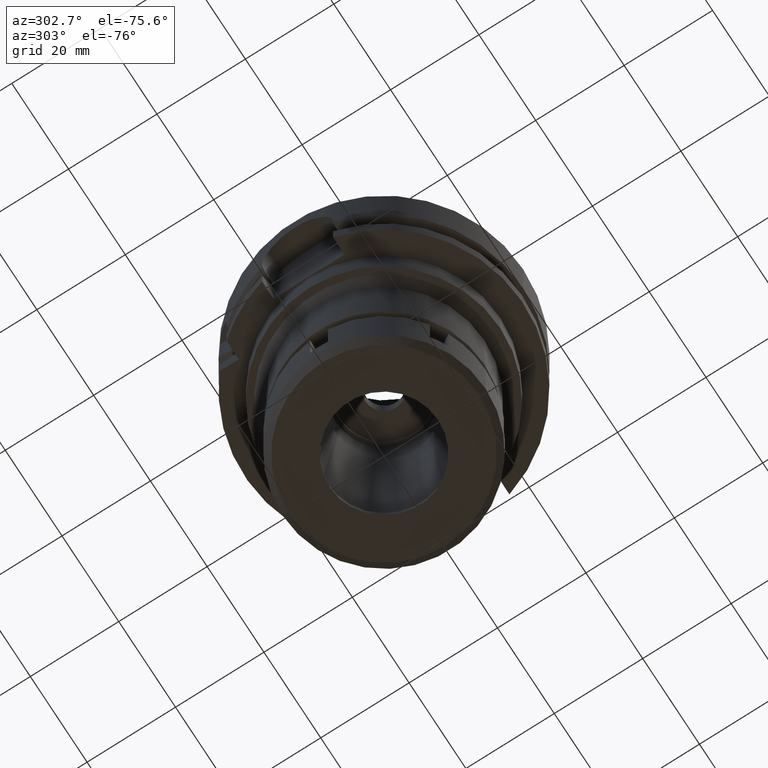
[diagram: clean part render]
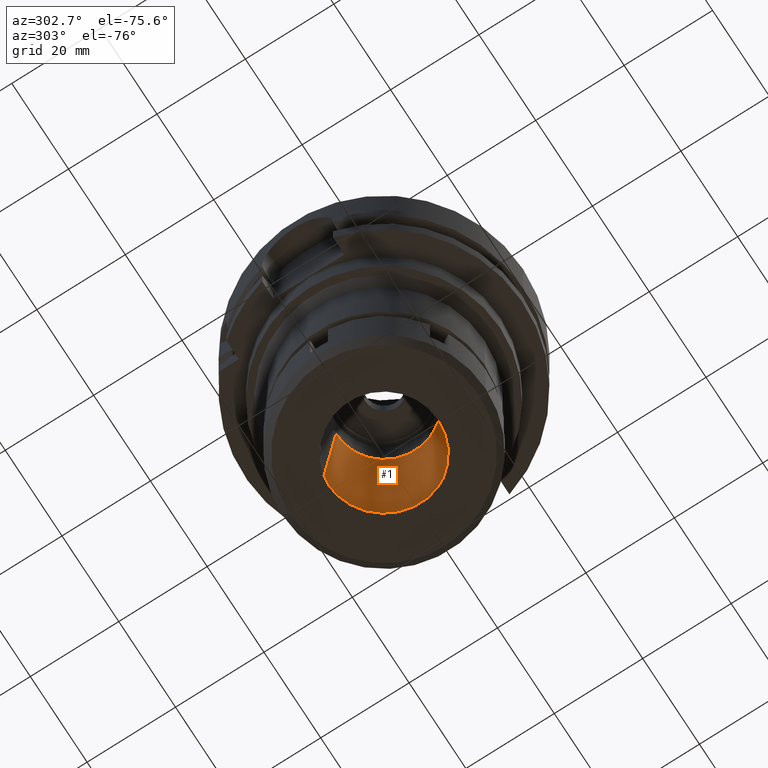
[diagram: same view with one face highlighted and labeled with its STEP entity id]
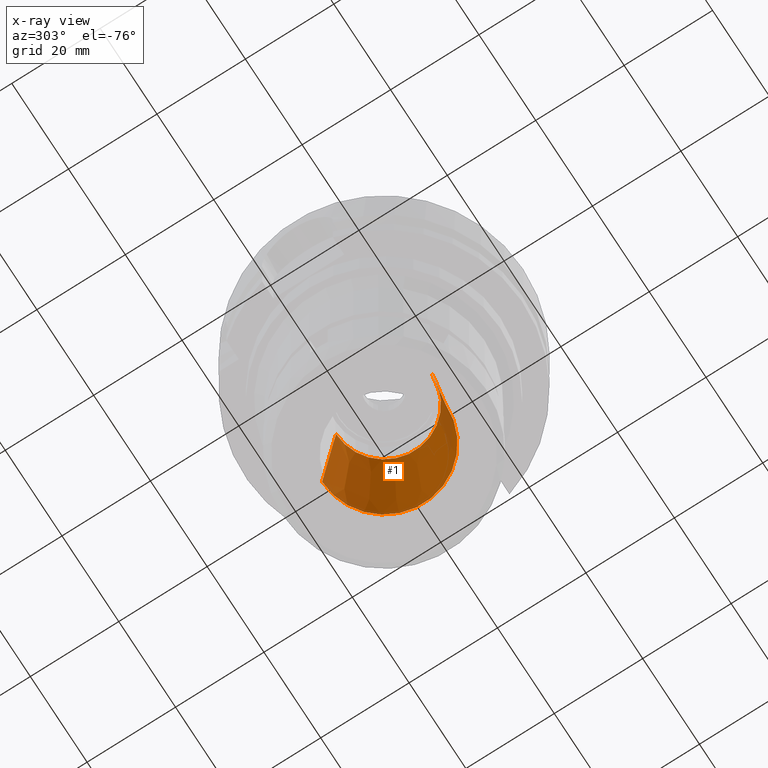
[diagram: x-ray of the same camera — body ghosted, the highlighted face saturated]
A machine part, auxiliary view. The second image highlights one B-rep face of the part: STEP entity #1.
The next image is the same camera in x-ray: the body ghosted, the highlighted face saturated — about 5% of this face is hidden behind the body in this view.
In plain terms, the highlighted conical surface has half-angle 6 deg.
Its self-contained STEP definition (entity closure, byte-faithful):
#1 = ADVANCED_FACE ( 'NONE', ( #909 ), #3991, .F. ) ;
#58 = AXIS2_PLACEMENT_3D ( 'NONE', #1584, #1493, #5385 ) ;
#283 = CARTESIAN_POINT ( 'NONE',  ( 0.0000000000000000000, 10.84687294202000096, -37.00000000000000000 ) ) ;
#517 = CARTESIAN_POINT ( 'NONE',  ( 0.0000000000000000000, 14.00000000000000000, -67.00000000000000000 ) ) ;
#808 = ORIENTED_EDGE ( 'NONE', *, *, #5412, .F. ) ;
#896 = VERTEX_POINT ( 'NONE', #4937 ) ;
#909 = FACE_OUTER_BOUND ( 'NONE', #5416, .T. ) ;
#1324 = ORIENTED_EDGE ( 'NONE', *, *, #3180, .T. ) ;
#1493 = DIRECTION ( 'NONE',  ( 0.0000000000000000000, 0.0000000000000000000, 1.000000000000000000 ) ) ;
#1584 = CARTESIAN_POINT ( 'NONE',  ( 0.0000000000000000000, 0.0000000000000000000, -37.00000000000000000 ) ) ;
#1620 = CARTESIAN_POINT ( 'NONE',  ( 0.0000000000000000000, -14.00000000000000000, -67.00000000000000000 ) ) ;
#1715 = LINE ( 'NONE', #1620, #4380 ) ;
#1796 = VERTEX_POINT ( 'NONE', #2607 ) ;
#1977 = VECTOR ( 'NONE', #3745, 1000.000000000000227 ) ;
#2577 = EDGE_CURVE ( 'NONE', #896, #3536, #1715, .T. ) ;
#2607 = CARTESIAN_POINT ( 'NONE',  ( 0.0000000000000000000, 14.00000000000000000, -67.00000000000000000 ) ) ;
#3179 = ORIENTED_EDGE ( 'NONE', *, *, #4331, .T. ) ;
#3180 = EDGE_CURVE ( 'NONE', #1796, #896, #6003, .T. ) ;
#3280 = AXIS2_PLACEMENT_3D ( 'NONE', #4152, #4618, #5062 ) ;
#3536 = VERTEX_POINT ( 'NONE', #4803 ) ;
#3650 = DIRECTION ( 'NONE',  ( 0.0000000000000000000, 0.1045284632676965891, 0.9945218953682687379 ) ) ;
#3745 = DIRECTION ( 'NONE',  ( 0.0000000000000000000, -0.1045284632676965891, 0.9945218953682687379 ) ) ;
#3991 = CONICAL_SURFACE ( 'NONE', #5007, 12.42343647100999959, 0.1047197551196402399 ) ;
#4152 = CARTESIAN_POINT ( 'NONE',  ( 0.0000000000000000000, 0.0000000000000000000, -67.00000000000000000 ) ) ;
#4331 = EDGE_CURVE ( 'NONE', #3536, #6096, #5112, .T. ) ;
#4380 = VECTOR ( 'NONE', #3650, 1000.000000000000227 ) ;
#4618 = DIRECTION ( 'NONE',  ( 0.0000000000000000000, 0.0000000000000000000, -1.000000000000000000 ) ) ;
#4803 = CARTESIAN_POINT ( 'NONE',  ( 0.0000000000000000000, -10.84687294202000096, -37.00000000000000000 ) ) ;
#4937 = CARTESIAN_POINT ( 'NONE',  ( 0.0000000000000000000, -14.00000000000000000, -67.00000000000000000 ) ) ;
#4996 = ORIENTED_EDGE ( 'NONE', *, *, #2577, .T. ) ;
#5007 = AXIS2_PLACEMENT_3D ( 'NONE', #5696, #5731, #5757 ) ;
#5062 = DIRECTION ( 'NONE',  ( 0.0000000000000000000, 1.000000000000000000, 0.0000000000000000000 ) ) ;
#5112 = CIRCLE ( 'NONE', #58, 10.84687294202000096 ) ;
#5385 = DIRECTION ( 'NONE',  ( 0.0000000000000000000, -1.000000000000000000, 0.0000000000000000000 ) ) ;
#5412 = EDGE_CURVE ( 'NONE', #1796, #6096, #5799, .T. ) ;
#5416 = EDGE_LOOP ( 'NONE', ( #1324, #4996, #3179, #808 ) ) ;
#5696 = CARTESIAN_POINT ( 'NONE',  ( 0.0000000000000000000, 0.0000000000000000000, -52.00000000000000000 ) ) ;
#5731 = DIRECTION ( 'NONE',  ( 0.0000000000000000000, 0.0000000000000000000, -1.000000000000000000 ) ) ;
#5757 = DIRECTION ( 'NONE',  ( 0.0000000000000000000, -1.000000000000000000, 0.0000000000000000000 ) ) ;
#5799 = LINE ( 'NONE', #517, #1977 ) ;
#6003 = CIRCLE ( 'NONE', #3280, 14.00000000000000000 ) ;
#6096 = VERTEX_POINT ( 'NONE', #283 ) ;